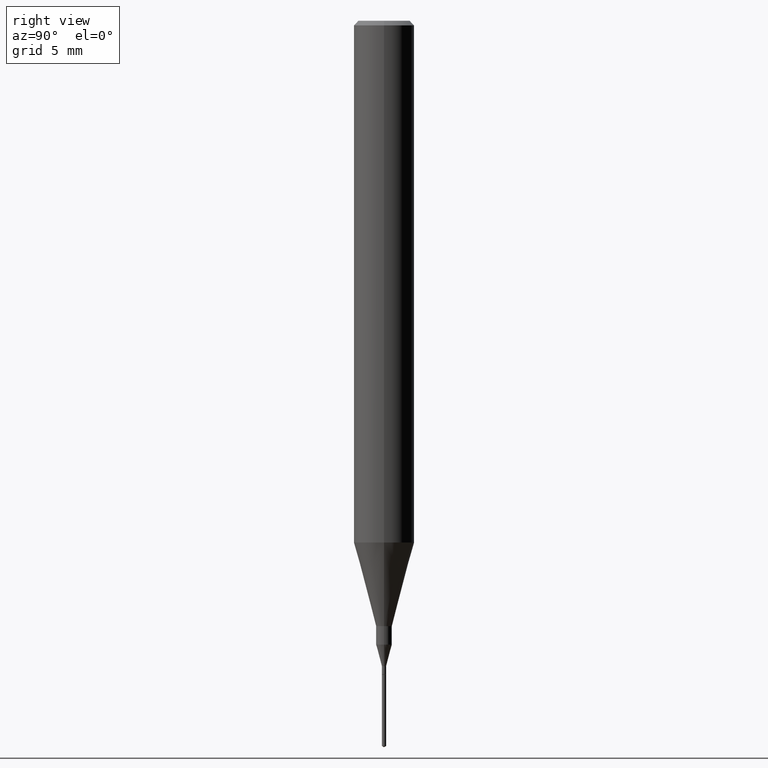
[diagram: clean part render]
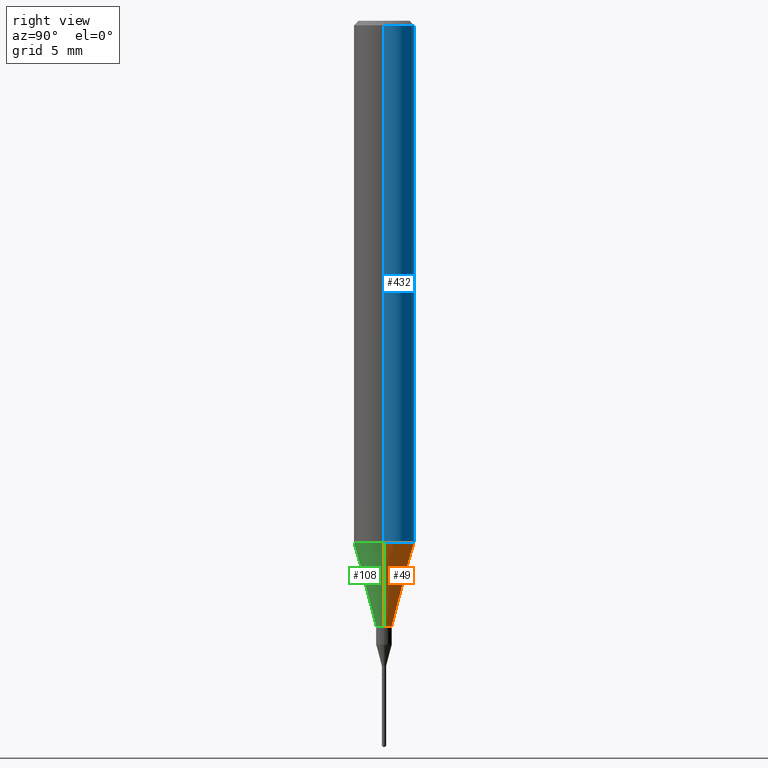
[diagram: same view with three faces highlighted in distinct colors, each labeled with its STEP entity id]
A machine part, right view with three faces highlighted in distinct colors.
Their STEP definitions:

[orange] entity #49 — the highlighted conical surface has half-angle 15 deg.
#6 = CARTESIAN_POINT ( 'NONE',  ( 2.634730117954813298E-29, -3.761696332605275695E-15, -1.077392650149939346 ) ) ;
#11 = DIRECTION ( 'NONE',  ( 0.2588190451025214611, 1.565188264969621573E-15, 0.9659258262890682012 ) ) ;
#25 = ORIENTED_EDGE ( 'NONE', *, *, #143, .F. ) ;
#39 = EDGE_CURVE ( 'NONE', #134, #175, #306, .T. ) ;
#49 = ADVANCED_FACE ( 'NONE', ( #348 ), #72, .T. ) ;
#61 = VERTEX_POINT ( 'NONE', #105 ) ;
#66 = EDGE_CURVE ( 'NONE', #134, #61, #255, .T. ) ;
#69 = CARTESIAN_POINT ( 'NONE',  ( -0.01624999999999999709, -4.315555863073202717E-15, -1.250000000000000000 ) ) ;
#70 = ORIENTED_EDGE ( 'NONE', *, *, #566, .T. ) ;
#72 = CONICAL_SURFACE ( 'NONE', #564, 0.06250000000000012490, 0.2617993877991501295 ) ;
#101 = CARTESIAN_POINT ( 'NONE',  ( 0.06250000000000012490, -4.198131499960668153E-15, -1.077392650149939346 ) ) ;
#105 = CARTESIAN_POINT ( 'NONE',  ( 0.06250000000000012490, -4.198131499960668153E-15, -1.077392650149939346 ) ) ;
#109 = CARTESIAN_POINT ( 'NONE',  ( 0.01624999999999999709, -4.477824817066334148E-15, -1.250000000000000000 ) ) ;
#113 = ORIENTED_EDGE ( 'NONE', *, *, #66, .F. ) ;
#134 = VERTEX_POINT ( 'NONE', #109 ) ;
#143 = EDGE_CURVE ( 'NONE', #61, #325, #482, .T. ) ;
#146 = LINE ( 'NONE', #291, #229 ) ;
#175 = VERTEX_POINT ( 'NONE', #69 ) ;
#203 = DIRECTION ( 'NONE',  ( -2.445468806185136597E-29, 3.491481338843145583E-15, 1.000000000000000000 ) ) ;
#206 = AXIS2_PLACEMENT_3D ( 'NONE', #431, #203, #427 ) ;
#218 = EDGE_LOOP ( 'NONE', ( #224, #70, #25, #113 ) ) ;
#224 = ORIENTED_EDGE ( 'NONE', *, *, #39, .T. ) ;
#229 = VECTOR ( 'NONE', #504, 39.37007874015747433 ) ;
#255 = LINE ( 'NONE', #101, #383 ) ;
#291 = CARTESIAN_POINT ( 'NONE',  ( -0.06250000000000012490, -3.317607122755211895E-15, -1.077392650149939346 ) ) ;
#297 = DIRECTION ( 'NONE',  ( -2.445468806185136597E-29, 3.491481338843145583E-15, 1.000000000000000000 ) ) ;
#306 = CIRCLE ( 'NONE', #206, 0.01624999999999999709 ) ;
#325 = VERTEX_POINT ( 'NONE', #446 ) ;
#348 = FACE_OUTER_BOUND ( 'NONE', #218, .T. ) ;
#354 = DIRECTION ( 'NONE',  ( -2.445468806185136597E-29, 3.491481338843145583E-15, 1.000000000000000000 ) ) ;
#363 = DIRECTION ( 'NONE',  ( 1.000000000000000000, -6.982962677686264344E-15, 0.000000000000000000 ) ) ;
#383 = VECTOR ( 'NONE', #11, 39.37007874015747433 ) ;
#427 = DIRECTION ( 'NONE',  ( 1.000000000000000000, -6.982962677686288799E-15, 0.000000000000000000 ) ) ;
#431 = CARTESIAN_POINT ( 'NONE',  ( 3.056836007731421306E-29, -4.364351673553932471E-15, -1.250000000000000000 ) ) ;
#446 = CARTESIAN_POINT ( 'NONE',  ( -0.06250000000000012490, -3.317607122755211895E-15, -1.077392650149939346 ) ) ;
#480 = CARTESIAN_POINT ( 'NONE',  ( 2.634730117954813298E-29, -3.761696332605275695E-15, -1.077392650149939346 ) ) ;
#482 = CIRCLE ( 'NONE', #561, 0.06250000000000012490 ) ;
#504 = DIRECTION ( 'NONE',  ( -0.2588190451025214611, 5.211531920934551042E-15, 0.9659258262890682012 ) ) ;
#560 = DIRECTION ( 'NONE',  ( 1.000000000000000000, -6.982962677686264344E-15, 0.000000000000000000 ) ) ;
#561 = AXIS2_PLACEMENT_3D ( 'NONE', #480, #354, #363 ) ;
#564 = AXIS2_PLACEMENT_3D ( 'NONE', #6, #297, #560 ) ;
#566 = EDGE_CURVE ( 'NONE', #175, #325, #146, .T. ) ;

[blue] entity #432 — the highlighted cylindrical surface (edge-blend (fillet) strip) has radius 1.5875 mm, axis along (-0, 0, 1).
#1 = CARTESIAN_POINT ( 'NONE',  ( -0.06250000000000006939, 4.440892098500631092E-16, -3.074334431409319267E-30 ) ) ;
#16 = DIRECTION ( 'NONE',  ( -2.445468806185136597E-29, 3.491481338843145583E-15, 1.000000000000000000 ) ) ;
#30 = VERTEX_POINT ( 'NONE', #522 ) ;
#61 = VERTEX_POINT ( 'NONE', #105 ) ;
#76 = EDGE_LOOP ( 'NONE', ( #389, #440, #571, #88 ) ) ;
#88 = ORIENTED_EDGE ( 'NONE', *, *, #350, .F. ) ;
#91 = VECTOR ( 'NONE', #244, 39.37007874015748143 ) ;
#105 = CARTESIAN_POINT ( 'NONE',  ( 0.06250000000000012490, -4.198131499960668153E-15, -1.077392650149939346 ) ) ;
#127 = LINE ( 'NONE', #328, #553 ) ;
#135 = EDGE_CURVE ( 'NONE', #273, #30, #466, .T. ) ;
#143 = EDGE_CURVE ( 'NONE', #61, #325, #482, .T. ) ;
#153 = AXIS2_PLACEMENT_3D ( 'NONE', #274, #16, #308 ) ;
#160 = CYLINDRICAL_SURFACE ( 'NONE', #337, 0.06250000000000006939 ) ;
#195 = LINE ( 'NONE', #1, #91 ) ;
#244 = DIRECTION ( 'NONE',  ( -2.445468806185136877E-29, 3.491481338843145188E-15, 1.000000000000000000 ) ) ;
#273 = VERTEX_POINT ( 'NONE', #416 ) ;
#274 = CARTESIAN_POINT ( 'NONE',  ( 2.292627005798580623E-31, -3.273263755165470801E-17, -0.009375000000000062103 ) ) ;
#293 = FACE_OUTER_BOUND ( 'NONE', #76, .T. ) ;
#308 = DIRECTION ( 'NONE',  ( 1.000000000000000000, -6.982962677686266711E-15, 0.000000000000000000 ) ) ;
#325 = VERTEX_POINT ( 'NONE', #446 ) ;
#328 = CARTESIAN_POINT ( 'NONE',  ( 0.06250000000000006939, -4.364351673553921624E-16, 3.047610484872463374E-30 ) ) ;
#337 = AXIS2_PLACEMENT_3D ( 'NONE', #393, #349, #445 ) ;
#349 = DIRECTION ( 'NONE',  ( -2.445468806185136597E-29, 3.491481338843145583E-15, 1.000000000000000000 ) ) ;
#350 = EDGE_CURVE ( 'NONE', #61, #273, #127, .T. ) ;
#354 = DIRECTION ( 'NONE',  ( -2.445468806185136597E-29, 3.491481338843145583E-15, 1.000000000000000000 ) ) ;
#363 = DIRECTION ( 'NONE',  ( 1.000000000000000000, -6.982962677686264344E-15, 0.000000000000000000 ) ) ;
#389 = ORIENTED_EDGE ( 'NONE', *, *, #143, .T. ) ;
#393 = CARTESIAN_POINT ( 'NONE',  ( 0.000000000000000000, 0.000000000000000000, 0.000000000000000000 ) ) ;
#416 = CARTESIAN_POINT ( 'NONE',  ( 0.06250000000000000000, -4.691678049070463404E-16, -0.009375000000000062103 ) ) ;
#432 = ADVANCED_FACE ( 'NONE', ( #293 ), #160, .T. ) ;
#440 = ORIENTED_EDGE ( 'NONE', *, *, #550, .T. ) ;
#445 = DIRECTION ( 'NONE',  ( 1.000000000000000000, -6.982962677686266711E-15, 4.876176775795935793E-29 ) ) ;
#446 = CARTESIAN_POINT ( 'NONE',  ( -0.06250000000000012490, -3.317607122755211895E-15, -1.077392650149939346 ) ) ;
#466 = CIRCLE ( 'NONE', #153, 0.06250000000000000000 ) ;
#480 = CARTESIAN_POINT ( 'NONE',  ( 2.634730117954813298E-29, -3.761696332605275695E-15, -1.077392650149939346 ) ) ;
#482 = CIRCLE ( 'NONE', #561, 0.06250000000000012490 ) ;
#522 = CARTESIAN_POINT ( 'NONE',  ( -0.06250000000000000000, -1.453125275228401137E-15, -0.009375000000000062103 ) ) ;
#550 = EDGE_CURVE ( 'NONE', #325, #30, #195, .T. ) ;
#551 = DIRECTION ( 'NONE',  ( -2.445468806185136877E-29, 3.491481338843145188E-15, 1.000000000000000000 ) ) ;
#553 = VECTOR ( 'NONE', #551, 39.37007874015748143 ) ;
#561 = AXIS2_PLACEMENT_3D ( 'NONE', #480, #354, #363 ) ;
#571 = ORIENTED_EDGE ( 'NONE', *, *, #135, .F. ) ;

[green] entity #108 — the highlighted conical surface has half-angle 15 deg.
#4 = DIRECTION ( 'NONE',  ( 1.000000000000000000, -6.982962677686288799E-15, 0.000000000000000000 ) ) ;
#11 = DIRECTION ( 'NONE',  ( 0.2588190451025214611, 1.565188264969621573E-15, 0.9659258262890682012 ) ) ;
#42 = AXIS2_PLACEMENT_3D ( 'NONE', #590, #508, #443 ) ;
#61 = VERTEX_POINT ( 'NONE', #105 ) ;
#66 = EDGE_CURVE ( 'NONE', #134, #61, #255, .T. ) ;
#69 = CARTESIAN_POINT ( 'NONE',  ( -0.01624999999999999709, -4.315555863073202717E-15, -1.250000000000000000 ) ) ;
#85 = CARTESIAN_POINT ( 'NONE',  ( 3.056836007731421306E-29, -4.364351673553932471E-15, -1.250000000000000000 ) ) ;
#101 = CARTESIAN_POINT ( 'NONE',  ( 0.06250000000000012490, -4.198131499960668153E-15, -1.077392650149939346 ) ) ;
#105 = CARTESIAN_POINT ( 'NONE',  ( 0.06250000000000012490, -4.198131499960668153E-15, -1.077392650149939346 ) ) ;
#106 = EDGE_LOOP ( 'NONE', ( #406, #301, #374, #357 ) ) ;
#108 = ADVANCED_FACE ( 'NONE', ( #577 ), #148, .T. ) ;
#109 = CARTESIAN_POINT ( 'NONE',  ( 0.01624999999999999709, -4.477824817066334148E-15, -1.250000000000000000 ) ) ;
#114 = AXIS2_PLACEMENT_3D ( 'NONE', #85, #588, #4 ) ;
#120 = DIRECTION ( 'NONE',  ( 1.000000000000000000, -6.982962677686264344E-15, 0.000000000000000000 ) ) ;
#132 = AXIS2_PLACEMENT_3D ( 'NONE', #223, #398, #120 ) ;
#134 = VERTEX_POINT ( 'NONE', #109 ) ;
#146 = LINE ( 'NONE', #291, #229 ) ;
#148 = CONICAL_SURFACE ( 'NONE', #132, 0.06250000000000012490, 0.2617993877991501295 ) ;
#175 = VERTEX_POINT ( 'NONE', #69 ) ;
#223 = CARTESIAN_POINT ( 'NONE',  ( 2.634730117954813298E-29, -3.761696332605275695E-15, -1.077392650149939346 ) ) ;
#229 = VECTOR ( 'NONE', #504, 39.37007874015747433 ) ;
#255 = LINE ( 'NONE', #101, #383 ) ;
#291 = CARTESIAN_POINT ( 'NONE',  ( -0.06250000000000012490, -3.317607122755211895E-15, -1.077392650149939346 ) ) ;
#299 = CIRCLE ( 'NONE', #114, 0.01624999999999999709 ) ;
#301 = ORIENTED_EDGE ( 'NONE', *, *, #531, .T. ) ;
#320 = CIRCLE ( 'NONE', #42, 0.06250000000000012490 ) ;
#325 = VERTEX_POINT ( 'NONE', #446 ) ;
#357 = ORIENTED_EDGE ( 'NONE', *, *, #425, .F. ) ;
#374 = ORIENTED_EDGE ( 'NONE', *, *, #66, .T. ) ;
#383 = VECTOR ( 'NONE', #11, 39.37007874015747433 ) ;
#398 = DIRECTION ( 'NONE',  ( -2.445468806185136597E-29, 3.491481338843145583E-15, 1.000000000000000000 ) ) ;
#406 = ORIENTED_EDGE ( 'NONE', *, *, #566, .F. ) ;
#425 = EDGE_CURVE ( 'NONE', #325, #61, #320, .T. ) ;
#443 = DIRECTION ( 'NONE',  ( 1.000000000000000000, -6.982962677686264344E-15, 0.000000000000000000 ) ) ;
#446 = CARTESIAN_POINT ( 'NONE',  ( -0.06250000000000012490, -3.317607122755211895E-15, -1.077392650149939346 ) ) ;
#504 = DIRECTION ( 'NONE',  ( -0.2588190451025214611, 5.211531920934551042E-15, 0.9659258262890682012 ) ) ;
#508 = DIRECTION ( 'NONE',  ( -2.445468806185136597E-29, 3.491481338843145583E-15, 1.000000000000000000 ) ) ;
#531 = EDGE_CURVE ( 'NONE', #175, #134, #299, .T. ) ;
#566 = EDGE_CURVE ( 'NONE', #175, #325, #146, .T. ) ;
#577 = FACE_OUTER_BOUND ( 'NONE', #106, .T. ) ;
#588 = DIRECTION ( 'NONE',  ( -2.445468806185136597E-29, 3.491481338843145583E-15, 1.000000000000000000 ) ) ;
#590 = CARTESIAN_POINT ( 'NONE',  ( 2.634730117954813298E-29, -3.761696332605275695E-15, -1.077392650149939346 ) ) ;